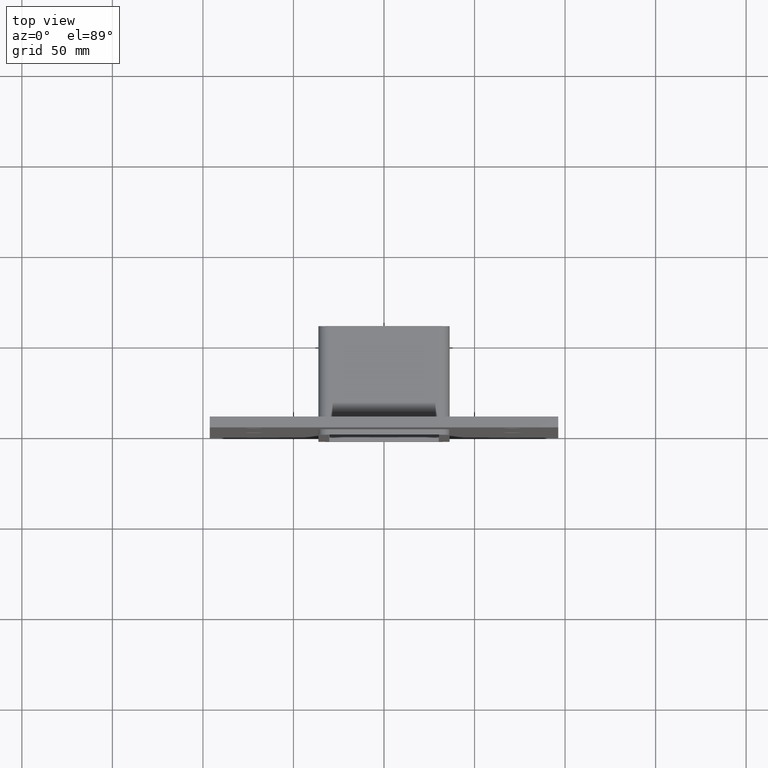
[diagram: clean part render]
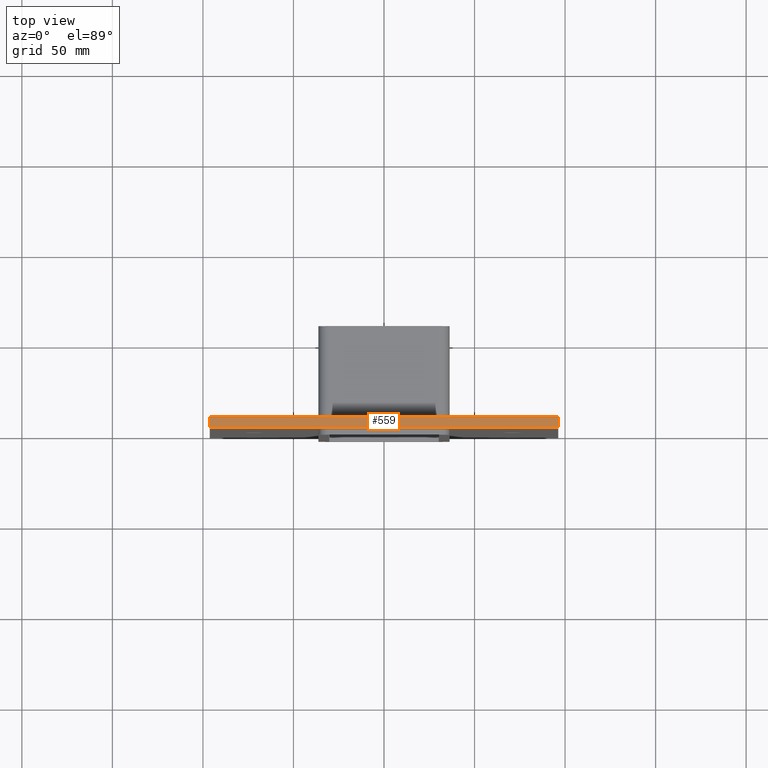
[diagram: same view with one face highlighted and labeled with its STEP entity id]
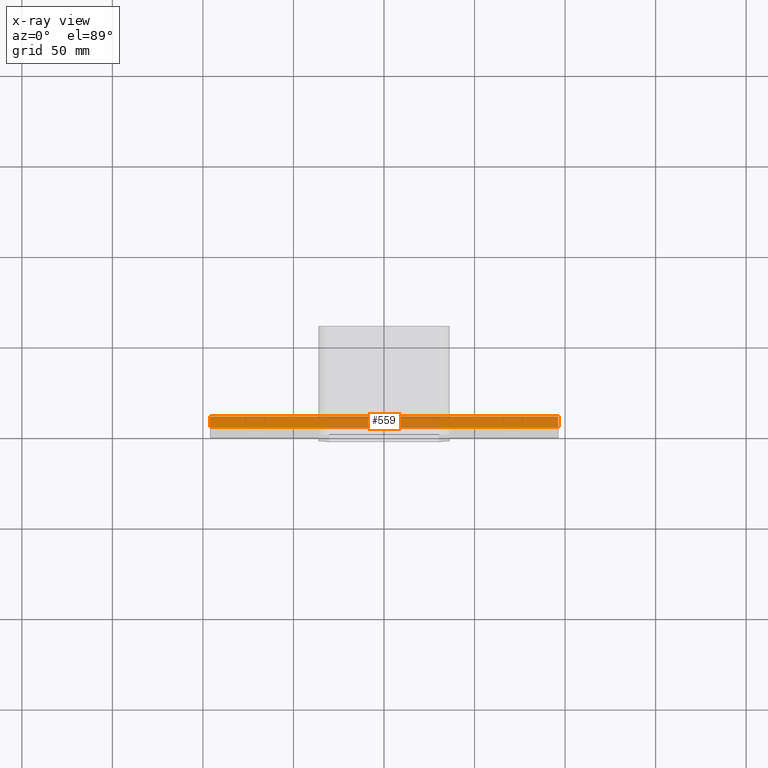
[diagram: x-ray of the same camera — body ghosted, the highlighted face saturated]
A machine part, top view. The second image highlights one B-rep face of the part: STEP entity #559.
The next image is the same camera in x-ray: the body ghosted, the highlighted face saturated — about 0% of this face is hidden behind the body in this view.
In plain terms, the highlighted planar face has unit normal (0, 0, 1).
Its self-contained STEP definition (entity closure, byte-faithful):
#241=CARTESIAN_POINT('',(-96.249999999999972,6.000000000000001,175.0));
#242=VERTEX_POINT('',#241);
#243=CARTESIAN_POINT('',(96.249999999999972,6.000000000000001,175.0));
#244=VERTEX_POINT('',#243);
#245=CARTESIAN_POINT('',(-96.249999999999972,6.000000000000001,175.0));
#246=DIRECTION('',(1.0,0.0,0.0));
#247=VECTOR('',#246,192.49999999999994);
#248=LINE('',#245,#247);
#249=EDGE_CURVE('',#242,#244,#248,.T.);
#369=CARTESIAN_POINT('',(-96.249999999999972,0.0,175.0));
#370=VERTEX_POINT('',#369);
#371=CARTESIAN_POINT('',(96.249999999999986,0.0,175.0));
#372=VERTEX_POINT('',#371);
#373=CARTESIAN_POINT('',(-96.249999999999972,0.0,175.0));
#374=DIRECTION('',(1.0,0.0,0.0));
#375=VECTOR('',#374,192.49999999999994);
#376=LINE('',#373,#375);
#377=EDGE_CURVE('',#370,#372,#376,.T.);
#498=CARTESIAN_POINT('',(-96.249999999999972,0.0,175.0));
#499=DIRECTION('',(0.0,1.0,0.0));
#500=VECTOR('',#499,6.000000000000001);
#501=LINE('',#498,#500);
#502=EDGE_CURVE('',#370,#242,#501,.T.);
#539=CARTESIAN_POINT('',(96.249999999999986,0.0,175.0));
#540=DIRECTION('',(0.0,1.0,0.0));
#541=VECTOR('',#540,6.000000000000001);
#542=LINE('',#539,#541);
#543=EDGE_CURVE('',#372,#244,#542,.T.);
#548=CARTESIAN_POINT('',(-96.249999999999972,0.0,175.0));
#549=DIRECTION('',(0.0,0.0,1.0));
#550=DIRECTION('',(1.0,0.0,0.0));
#551=AXIS2_PLACEMENT_3D('',#548,#549,#550);
#552=PLANE('',#551);
#553=ORIENTED_EDGE('',*,*,#377,.T.);
#554=ORIENTED_EDGE('',*,*,#543,.T.);
#555=ORIENTED_EDGE('',*,*,#249,.F.);
#556=ORIENTED_EDGE('',*,*,#502,.F.);
#557=EDGE_LOOP('',(#553,#554,#555,#556));
#558=FACE_OUTER_BOUND('',#557,.T.);
#559=ADVANCED_FACE('',(#558),#552,.T.);